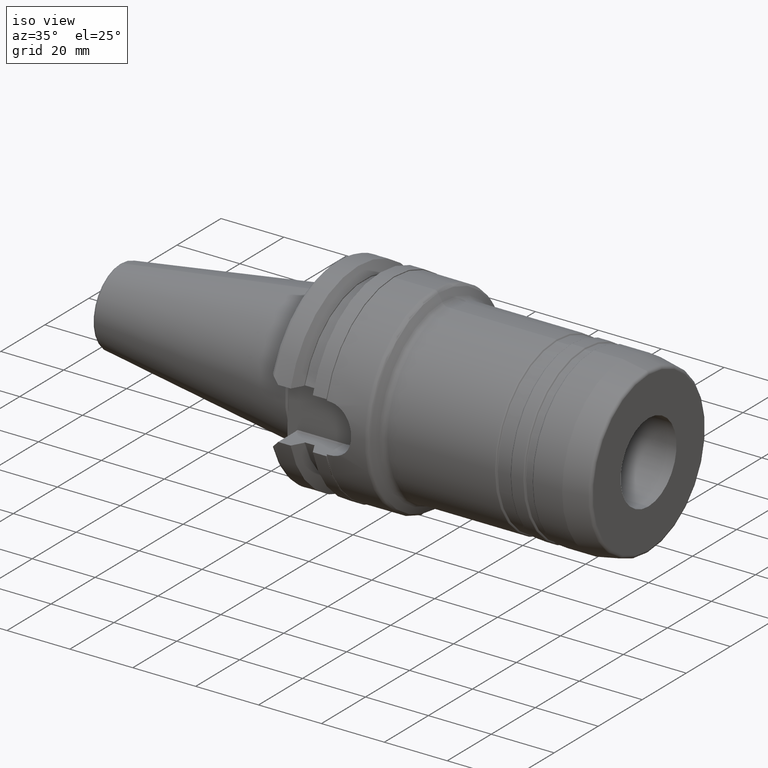
[diagram: clean part render]
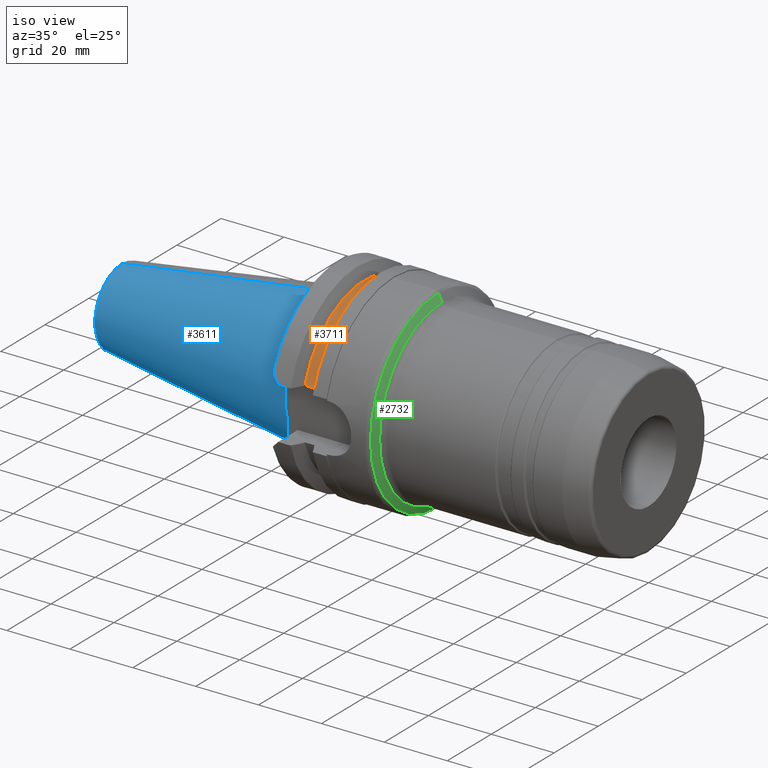
[diagram: same view with three faces highlighted in distinct colors, each labeled with its STEP entity id]
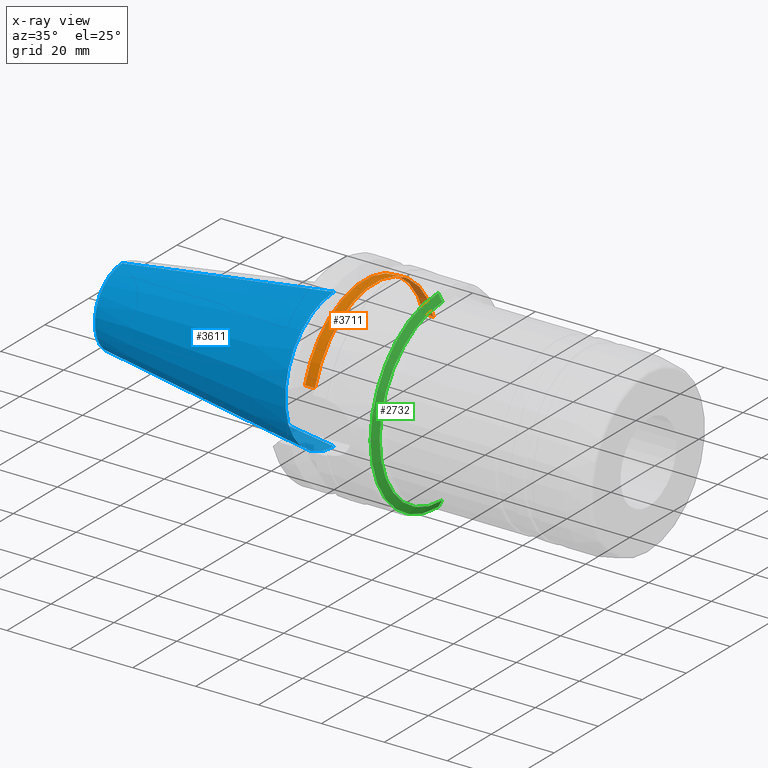
[diagram: x-ray of the same camera — body ghosted, the three highlighted faces saturated]
A machine part, iso view with three faces highlighted in distinct colors.
The next image is the same camera in x-ray (body ghosted, the three faces saturated) — at least one of them is partly hidden behind the body in this view.
Their STEP definitions:

[orange] entity #3711 — the highlighted cylindrical surface (partial cylindrical patch) has radius 28.15 mm, axis along (1, 0, 0).
#1418=DIRECTION('',(1.E0,0.E0,0.E0));
#1419=VECTOR('',#1418,3.192998853654E0);
#1420=CARTESIAN_POINT('',(9.579500573173E0,-2.693225575402E1,8.19E0));
#1421=LINE('',#1420,#1419);
#1422=CARTESIAN_POINT('',(9.579500573173E0,0.E0,0.E0));
#1423=DIRECTION('',(-1.E0,0.E0,0.E0));
#1424=DIRECTION('',(0.E0,-9.567408793613E-1,2.909413854352E-1));
#1425=AXIS2_PLACEMENT_3D('',#1422,#1423,#1424);
#1427=DIRECTION('',(1.E0,0.E0,0.E0));
#1428=VECTOR('',#1427,3.192998853654E0);
#1429=CARTESIAN_POINT('',(9.579500573173E0,2.693225575402E1,8.19E0));
#1430=LINE('',#1429,#1428);
#1431=CARTESIAN_POINT('',(1.277249942683E1,0.E0,0.E0));
#1432=DIRECTION('',(1.E0,0.E0,0.E0));
#1433=DIRECTION('',(0.E0,9.567408793613E-1,2.909413854352E-1));
#1434=AXIS2_PLACEMENT_3D('',#1431,#1432,#1433);
#1461=CARTESIAN_POINT('',(9.579500573173E0,2.693225575402E1,8.19E0));
#1462=CARTESIAN_POINT('',(1.277249942683E1,2.693225575402E1,8.19E0));
#1463=VERTEX_POINT('',#1461);
#1464=VERTEX_POINT('',#1462);
#1492=CARTESIAN_POINT('',(9.579500573173E0,-2.693225575402E1,8.19E0));
#1493=CARTESIAN_POINT('',(1.277249942683E1,-2.693225575402E1,8.19E0));
#1494=VERTEX_POINT('',#1492);
#1495=VERTEX_POINT('',#1493);
#3700=CARTESIAN_POINT('',(-7.351083384538E-1,0.E0,0.E0));
#3701=DIRECTION('',(1.E0,0.E0,0.E0));
#3702=DIRECTION('',(0.E0,0.E0,1.E0));
#3703=AXIS2_PLACEMENT_3D('',#3700,#3701,#3702);
#3704=CYLINDRICAL_SURFACE('',#3703,2.815E1);
#3705=ORIENTED_EDGE('',*,*,#2956,.F.);
#3706=ORIENTED_EDGE('',*,*,#3683,.T.);
#3707=ORIENTED_EDGE('',*,*,#3195,.T.);
#3708=ORIENTED_EDGE('',*,*,#3229,.T.);
#3709=EDGE_LOOP('',(#3705,#3706,#3707,#3708));
#3710=FACE_OUTER_BOUND('',#3709,.F.);
#3711=ADVANCED_FACE('',(#3710),#3704,.T.);
#1426=CIRCLE('',#1425,2.815E1);
#1435=CIRCLE('',#1434,2.815E1);
#2956=EDGE_CURVE('',#1494,#1495,#1421,.T.);
#3195=EDGE_CURVE('',#1463,#1464,#1430,.T.);
#3229=EDGE_CURVE('',#1464,#1495,#1435,.T.);
#3683=EDGE_CURVE('',#1494,#1463,#1426,.T.);

[blue] entity #3611 — the highlighted conical surface has half-angle 8.297 deg.
#1308=CARTESIAN_POINT('',(-6.739430687632E1,0.E0,0.E0));
#1309=DIRECTION('',(-1.E0,0.E0,0.E0));
#1310=DIRECTION('',(0.E0,0.E0,-1.E0));
#1311=AXIS2_PLACEMENT_3D('',#1308,#1309,#1310);
#1313=DIRECTION('',(-9.895329835059E-1,-1.947755452379E-13,-1.443068763221E-1));
#1314=VECTOR('',#1313,6.810718591466E1);
#1315=CARTESIAN_POINT('',(0.E0,0.E0,2.2225E1));
#1316=LINE('',#1315,#1314);
#1317=CARTESIAN_POINT('',(0.E0,0.E0,0.E0));
#1318=DIRECTION('',(1.E0,0.E0,0.E0));
#1319=DIRECTION('',(0.E0,0.E0,1.E0));
#1320=AXIS2_PLACEMENT_3D('',#1317,#1318,#1319);
#1322=DIRECTION('',(-9.895329835059E-1,1.947894673461E-13,1.443068763221E-1));
#1323=VECTOR('',#1322,6.810718591466E1);
#1324=CARTESIAN_POINT('',(0.E0,0.E0,-2.2225E1));
#1325=LINE('',#1324,#1323);
#1445=CARTESIAN_POINT('',(0.E0,0.E0,-2.2225E1));
#1446=CARTESIAN_POINT('',(0.E0,0.E0,2.2225E1));
#1447=VERTEX_POINT('',#1445);
#1448=VERTEX_POINT('',#1446);
#1539=CARTESIAN_POINT('',(-6.739430687632E1,0.E0,-1.239666474557E1));
#1540=CARTESIAN_POINT('',(-6.739430687632E1,0.E0,1.239666474557E1));
#1541=VERTEX_POINT('',#1539);
#1542=VERTEX_POINT('',#1540);
#3599=CARTESIAN_POINT('',(-3.369715343816E1,0.E0,0.E0));
#3600=DIRECTION('',(1.E0,0.E0,0.E0));
#3601=DIRECTION('',(0.E0,0.E0,1.E0));
#3602=AXIS2_PLACEMENT_3D('',#3599,#3600,#3601);
#3603=CONICAL_SURFACE('',#3602,1.731083237279E1,8.297144E0);
#3605=ORIENTED_EDGE('',*,*,#3604,.T.);
#3606=ORIENTED_EDGE('',*,*,#1776,.F.);
#3607=ORIENTED_EDGE('',*,*,#3589,.T.);
#3608=ORIENTED_EDGE('',*,*,#1772,.T.);
#3609=EDGE_LOOP('',(#3605,#3606,#3607,#3608));
#3610=FACE_OUTER_BOUND('',#3609,.F.);
#3611=ADVANCED_FACE('',(#3610),#3603,.T.);
#1312=CIRCLE('',#1311,1.239666474557E1);
#1321=CIRCLE('',#1320,2.2225E1);
#1772=EDGE_CURVE('',#1447,#1541,#1325,.T.);
#1776=EDGE_CURVE('',#1448,#1542,#1316,.T.);
#3589=EDGE_CURVE('',#1448,#1447,#1321,.T.);
#3604=EDGE_CURVE('',#1541,#1542,#1312,.T.);

[green] entity #2732 — the highlighted conical surface has half-angle 60 deg.
#627=DIRECTION('',(-5.E-1,0.E0,-8.660254037844E-1));
#628=VECTOR('',#627,2.598076211348E0);
#629=CARTESIAN_POINT('',(3.442264973079E1,0.E0,-2.85E1));
#630=LINE('',#629,#628);
#631=DIRECTION('',(-5.E-1,0.E0,8.660254037844E-1));
#632=VECTOR('',#631,2.598076211348E0);
#633=CARTESIAN_POINT('',(3.442264973079E1,0.E0,2.85E1));
#634=LINE('',#633,#632);
#635=CARTESIAN_POINT('',(3.442264973079E1,0.E0,0.E0));
#636=DIRECTION('',(-1.E0,0.E0,0.E0));
#637=DIRECTION('',(0.E0,0.E0,-1.E0));
#638=AXIS2_PLACEMENT_3D('',#635,#636,#637);
#650=CARTESIAN_POINT('',(3.312361162511E1,0.E0,0.E0));
#651=DIRECTION('',(-1.E0,0.E0,0.E0));
#652=DIRECTION('',(0.E0,0.E0,-1.E0));
#653=AXIS2_PLACEMENT_3D('',#650,#651,#652);
#1635=CARTESIAN_POINT('',(3.442264973079E1,0.E0,-2.85E1));
#1636=VERTEX_POINT('',#1635);
#1637=CARTESIAN_POINT('',(3.312361162511E1,0.E0,-3.075E1));
#1638=VERTEX_POINT('',#1637);
#1689=CARTESIAN_POINT('',(3.442264973079E1,0.E0,2.85E1));
#1690=VERTEX_POINT('',#1689);
#1691=CARTESIAN_POINT('',(3.312361162511E1,0.E0,3.075E1));
#1692=VERTEX_POINT('',#1691);
#2720=CARTESIAN_POINT('',(3.377313067795E1,0.E0,0.E0));
#2721=DIRECTION('',(-1.E0,0.E0,0.E0));
#2722=DIRECTION('',(0.E0,0.E0,-1.E0));
#2723=AXIS2_PLACEMENT_3D('',#2720,#2721,#2722);
#2724=CONICAL_SURFACE('',#2723,2.9625E1,6.E1);
#2725=ORIENTED_EDGE('',*,*,#2710,.T.);
#2727=ORIENTED_EDGE('',*,*,#2726,.T.);
#2728=ORIENTED_EDGE('',*,*,#2713,.F.);
#2729=ORIENTED_EDGE('',*,*,#2684,.F.);
#2730=EDGE_LOOP('',(#2725,#2727,#2728,#2729));
#2731=FACE_OUTER_BOUND('',#2730,.F.);
#2732=ADVANCED_FACE('',(#2731),#2724,.T.);
#639=CIRCLE('',#638,2.85E1);
#654=CIRCLE('',#653,3.075E1);
#2684=EDGE_CURVE('',#1636,#1690,#639,.T.);
#2710=EDGE_CURVE('',#1636,#1638,#630,.T.);
#2713=EDGE_CURVE('',#1690,#1692,#634,.T.);
#2726=EDGE_CURVE('',#1638,#1692,#654,.T.);